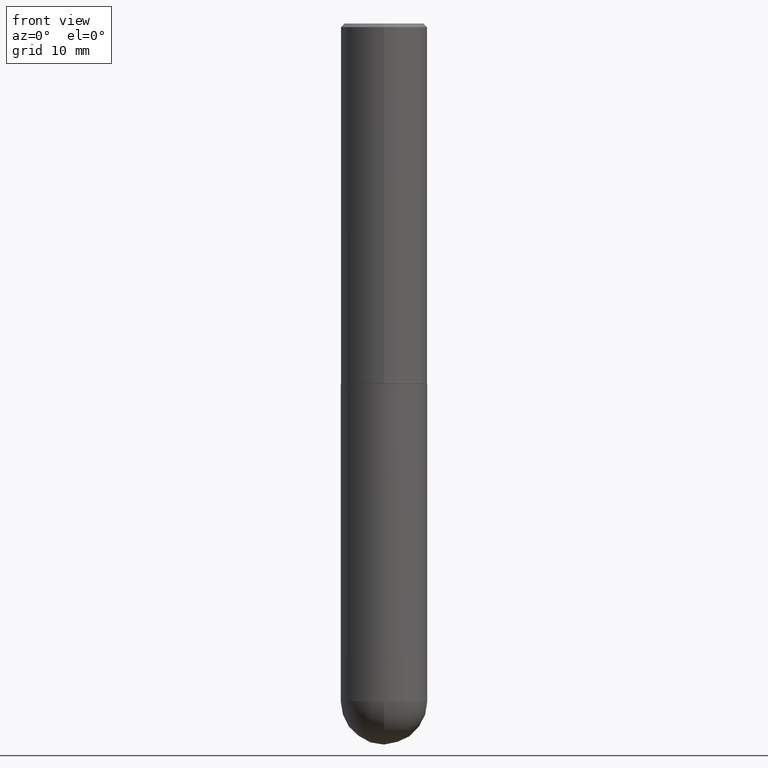
[diagram: clean part render]
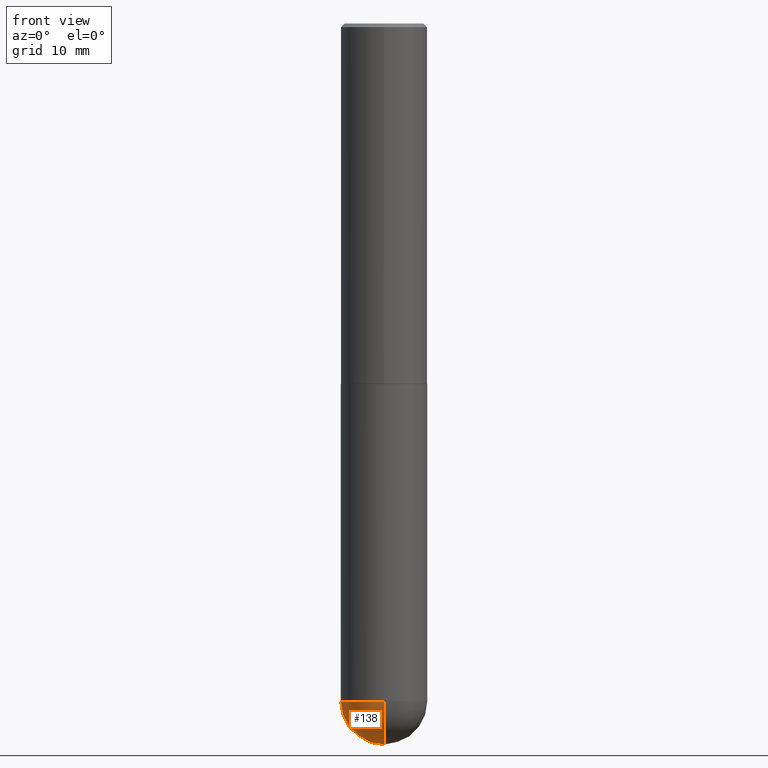
[diagram: same view with one face highlighted and labeled with its STEP entity id]
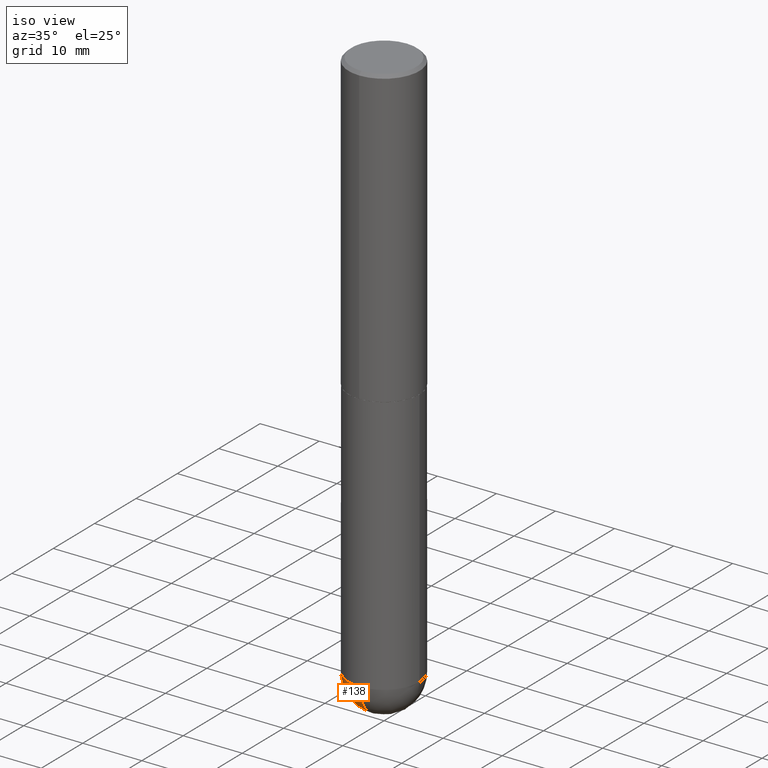
[diagram: same view with one face highlighted and labeled with its STEP entity id]
A machine part, front view. The second image highlights one B-rep face of the part: STEP entity #138.
A second angle (iso view) of the same face is appended — the face is thin or edge-on in the first view.
In plain terms, the highlighted spherical surface has radius 5.9995 mm.
Its self-contained STEP definition (entity closure, byte-faithful):
#10 = CIRCLE ( 'NONE', #225, 0.2361999999999999933 ) ;
#40 = FACE_OUTER_BOUND ( 'NONE', #405, .T. ) ;
#41 = EDGE_CURVE ( 'NONE', #161, #348, #10, .T. ) ;
#44 = DIRECTION ( 'NONE',  ( -1.000000000000000000, 7.105427357601001070E-15, -4.926315508542082329E-29 ) ) ;
#48 = CIRCLE ( 'NONE', #254, 0.2361999999999999933 ) ;
#56 = CARTESIAN_POINT ( 'NONE',  ( -0.2361999999999999933, -8.218825635286368613E-15, -3.700800000000000090 ) ) ;
#61 = VERTEX_POINT ( 'NONE', #202 ) ;
#65 = ORIENTED_EDGE ( 'NONE', *, *, #67, .F. ) ;
#67 = EDGE_CURVE ( 'NONE', #348, #61, #48, .T. ) ;
#74 = DIRECTION ( 'NONE',  ( -2.445468806185136597E-29, 3.491481338843145583E-15, 1.000000000000000000 ) ) ;
#88 = VERTEX_POINT ( 'NONE', #359 ) ;
#96 = DIRECTION ( 'NONE',  ( -1.000000000000000000, 6.982962677686265922E-15, -4.883557194083112901E-29 ) ) ;
#100 = SPHERICAL_SURFACE ( 'NONE', #204, 0.2362000000000002709 ) ;
#101 = EDGE_CURVE ( 'NONE', #88, #61, #295, .T. ) ;
#103 = AXIS2_PLACEMENT_3D ( 'NONE', #298, #44, #304 ) ;
#123 = DIRECTION ( 'NONE',  ( 6.982962677686265922E-15, 1.000000000000000000, 0.000000000000000000 ) ) ;
#131 = ORIENTED_EDGE ( 'NONE', *, *, #41, .F. ) ;
#138 = ADVANCED_FACE ( 'NONE', ( #40 ), #100, .T. ) ;
#161 = VERTEX_POINT ( 'NONE', #185 ) ;
#173 = DIRECTION ( 'NONE',  ( 1.000000000000000000, -6.982962677686265133E-15, 0.000000000000000000 ) ) ;
#185 = CARTESIAN_POINT ( 'NONE',  ( 1.649375784469585666E-15, 0.2361999999999869759, -3.700800000000000978 ) ) ;
#194 = ORIENTED_EDGE ( 'NONE', *, *, #389, .F. ) ;
#202 = CARTESIAN_POINT ( 'NONE',  ( -1.678301941865268633E-15, -0.2362000000000132882, -3.700799999999998757 ) ) ;
#203 = CARTESIAN_POINT ( 'NONE',  ( 9.050190957929953666E-29, -1.292127413879071357E-14, -3.700800000000000090 ) ) ;
#204 = AXIS2_PLACEMENT_3D ( 'NONE', #240, #96, #386 ) ;
#211 = AXIS2_PLACEMENT_3D ( 'NONE', #403, #263, #123 ) ;
#225 = AXIS2_PLACEMENT_3D ( 'NONE', #203, #74, #173 ) ;
#240 = CARTESIAN_POINT ( 'NONE',  ( 8.719071180016067419E-29, -1.339545650693076387E-14, -3.700800000000000090 ) ) ;
#245 = CARTESIAN_POINT ( 'NONE',  ( 9.050190957929953666E-29, -1.292127413879071357E-14, -3.700800000000000090 ) ) ;
#254 = AXIS2_PLACEMENT_3D ( 'NONE', #245, #393, #272 ) ;
#263 = DIRECTION ( 'NONE',  ( 1.000000000000000000, -6.982962677686265922E-15, 4.883557194083112340E-29 ) ) ;
#272 = DIRECTION ( 'NONE',  ( 1.000000000000000000, -6.982962677686265133E-15, 0.000000000000000000 ) ) ;
#278 = CIRCLE ( 'NONE', #211, 0.2362000000000002709 ) ;
#288 = ORIENTED_EDGE ( 'NONE', *, *, #101, .T. ) ;
#295 = CIRCLE ( 'NONE', #103, 0.2362000000000002709 ) ;
#298 = CARTESIAN_POINT ( 'NONE',  ( 8.719071180016067419E-29, -1.339545650693076387E-14, -3.700800000000000090 ) ) ;
#304 = DIRECTION ( 'NONE',  ( -7.105427357601001070E-15, -1.000000000000000000, 0.000000000000000000 ) ) ;
#348 = VERTEX_POINT ( 'NONE', #56 ) ;
#359 = CARTESIAN_POINT ( 'NONE',  ( 9.306790425912204830E-29, -1.420568132046758614E-14, -3.937000000000000277 ) ) ;
#386 = DIRECTION ( 'NONE',  ( 6.982962677686265922E-15, 1.000000000000000000, -4.626330217890364603E-15 ) ) ;
#389 = EDGE_CURVE ( 'NONE', #88, #161, #278, .T. ) ;
#393 = DIRECTION ( 'NONE',  ( -2.445468806185136597E-29, 3.491481338843145583E-15, 1.000000000000000000 ) ) ;
#403 = CARTESIAN_POINT ( 'NONE',  ( 8.719071180016067419E-29, -1.339545650693076387E-14, -3.700800000000000090 ) ) ;
#405 = EDGE_LOOP ( 'NONE', ( #194, #288, #65, #131 ) ) ;